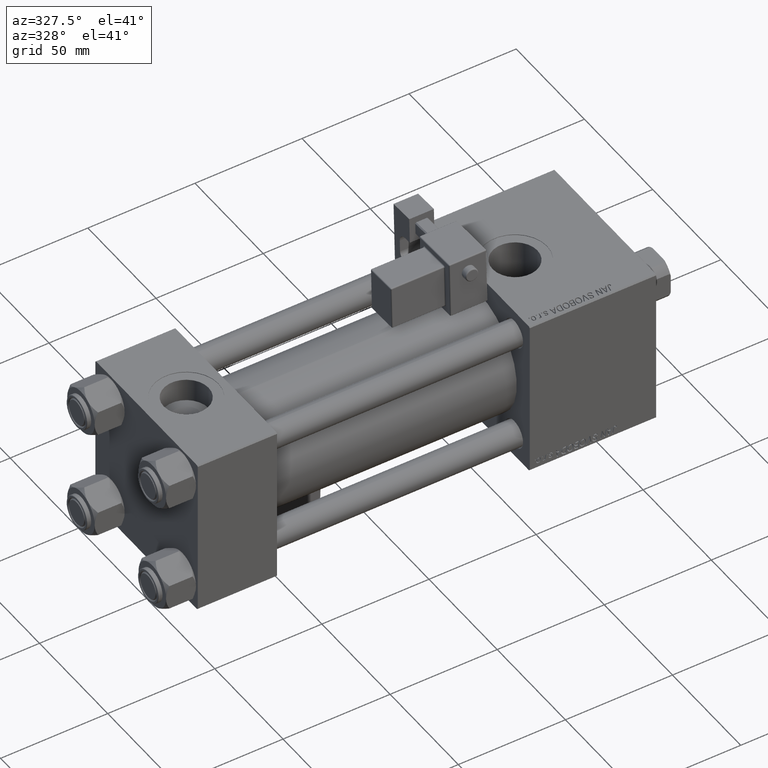
[diagram: clean part render]
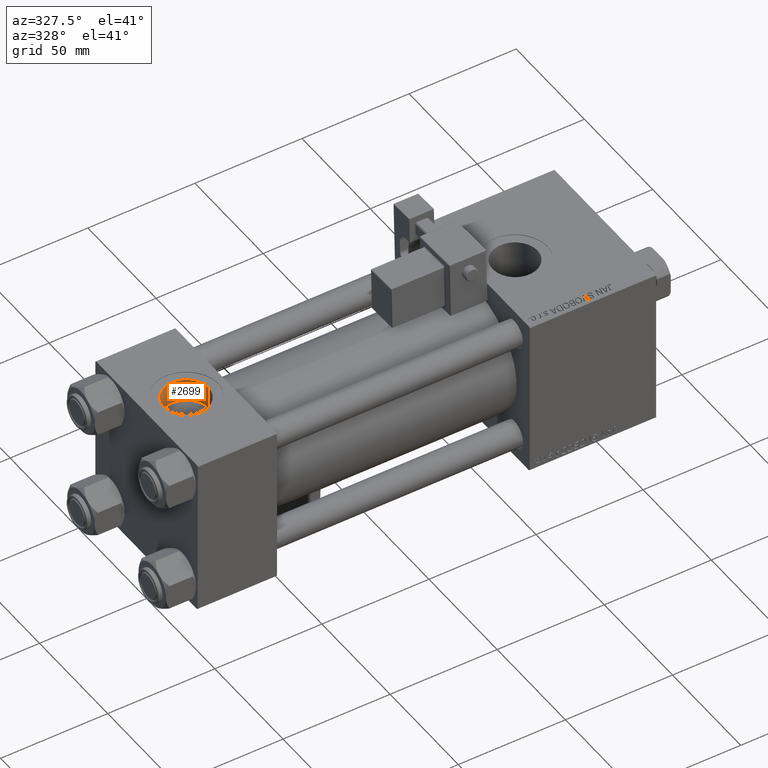
[diagram: same view with one face highlighted and labeled with its STEP entity id]
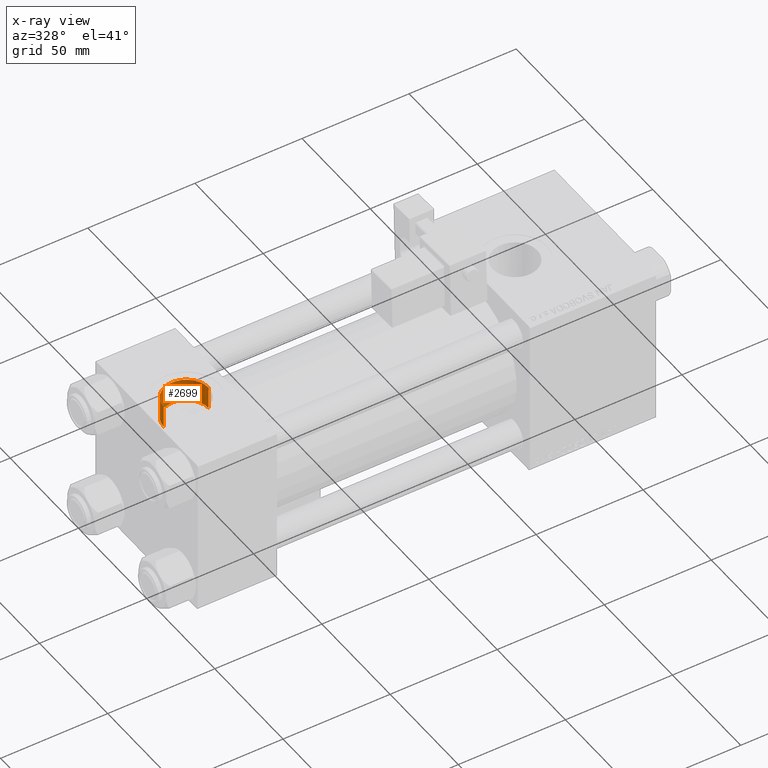
[diagram: x-ray of the same camera — body ghosted, the highlighted face saturated]
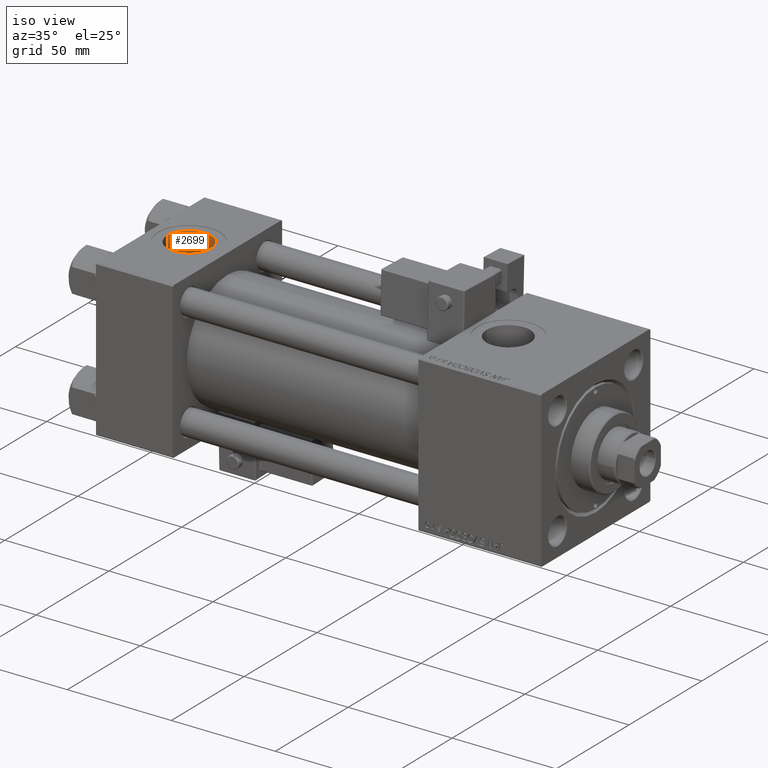
[diagram: same view with one face highlighted and labeled with its STEP entity id]
A machine part, auxiliary view. The second image highlights one B-rep face of the part: STEP entity #2699.
The next image is the same camera in x-ray: the body ghosted, the highlighted face saturated — about 0% of this face is hidden behind the body in this view.
A second angle (iso view) of the same face is appended — the face is thin or edge-on in the first view.
In plain terms, the highlighted cylindrical surface (edge-blend (fillet) strip) has radius 10.48 mm, axis along (0, 0, 1).
Its self-contained STEP definition (entity closure, byte-faithful):
#966 = CARTESIAN_POINT ( 'NONE',  ( 28.98000000000000043, -5.204170427930421283E-15, 37.29999999999999716 ) ) ;
#2241 = CARTESIAN_POINT ( 'NONE',  ( 8.019999999999999574, -3.920740582423995006E-15, 26.69999999999999929 ) ) ;
#2654 = VERTEX_POINT ( 'NONE', #15131 ) ;
#2699 = ADVANCED_FACE ( 'NONE', ( #20432 ), #8475, .F. ) ;
#3279 = VERTEX_POINT ( 'NONE', #51602 ) ;
#3879 = ORIENTED_EDGE ( 'NONE', *, *, #43959, .T. ) ;
#5575 = CARTESIAN_POINT ( 'NONE',  ( 18.50000000000000000, -5.204170427930421283E-15, 37.29999999999999716 ) ) ;
#8475 = CYLINDRICAL_SURFACE ( 'NONE', #40506, 10.48000000000000043 ) ;
#9133 = ORIENTED_EDGE ( 'NONE', *, *, #28929, .T. ) ;
#10899 = EDGE_CURVE ( 'NONE', #51161, #3279, #15833, .T. ) ;
#11018 = VECTOR ( 'NONE', #32542, 1000.000000000000000 ) ;
#12841 = ORIENTED_EDGE ( 'NONE', *, *, #20558, .F. ) ;
#15131 = CARTESIAN_POINT ( 'NONE',  ( 28.98000000000000043, -5.204170427930421283E-15, 26.69999999999999929 ) ) ;
#15833 = LINE ( 'NONE', #36281, #11018 ) ;
#16445 = DIRECTION ( 'NONE',  ( -0.000000000000000000, -0.000000000000000000, 1.000000000000000000 ) ) ;
#20432 = FACE_OUTER_BOUND ( 'NONE', #52162, .T. ) ;
#20558 = EDGE_CURVE ( 'NONE', #2654, #51161, #29987, .T. ) ;
#23501 = CARTESIAN_POINT ( 'NONE',  ( 28.98000000000000043, -5.204170427930421283E-15, 26.69999999999999929 ) ) ;
#23868 = DIRECTION ( 'NONE',  ( 0.000000000000000000, 0.000000000000000000, 1.000000000000000000 ) ) ;
#24674 = CARTESIAN_POINT ( 'NONE',  ( 18.50000000000000000, -5.204170427930421283E-15, 26.69999999999999929 ) ) ;
#24912 = AXIS2_PLACEMENT_3D ( 'NONE', #32867, #23868, #48050 ) ;
#25633 = VERTEX_POINT ( 'NONE', #966 ) ;
#28929 = EDGE_CURVE ( 'NONE', #25633, #3279, #29151, .T. ) ;
#29151 = CIRCLE ( 'NONE', #35939, 10.48000000000000043 ) ;
#29987 = CIRCLE ( 'NONE', #24912, 10.48000000000000043 ) ;
#32542 = DIRECTION ( 'NONE',  ( -0.000000000000000000, -0.000000000000000000, 1.000000000000000000 ) ) ;
#32867 = CARTESIAN_POINT ( 'NONE',  ( 18.50000000000000000, -5.204170427930421283E-15, 26.69999999999999929 ) ) ;
#34516 = DIRECTION ( 'NONE',  ( 1.000000000000000000, 0.000000000000000000, 0.000000000000000000 ) ) ;
#35510 = VECTOR ( 'NONE', #47423, 1000.000000000000000 ) ;
#35939 = AXIS2_PLACEMENT_3D ( 'NONE', #5575, #46488, #34516 ) ;
#36281 = CARTESIAN_POINT ( 'NONE',  ( 8.019999999999999574, -3.920740582423995006E-15, 26.69999999999999929 ) ) ;
#40506 = AXIS2_PLACEMENT_3D ( 'NONE', #24674, #16445, #40879 ) ;
#40879 = DIRECTION ( 'NONE',  ( 1.000000000000000000, 0.000000000000000000, 0.000000000000000000 ) ) ;
#42804 = ORIENTED_EDGE ( 'NONE', *, *, #10899, .F. ) ;
#43959 = EDGE_CURVE ( 'NONE', #2654, #25633, #52201, .T. ) ;
#46488 = DIRECTION ( 'NONE',  ( 0.000000000000000000, 0.000000000000000000, 1.000000000000000000 ) ) ;
#47423 = DIRECTION ( 'NONE',  ( -0.000000000000000000, -0.000000000000000000, 1.000000000000000000 ) ) ;
#48050 = DIRECTION ( 'NONE',  ( 1.000000000000000000, 0.000000000000000000, 0.000000000000000000 ) ) ;
#51161 = VERTEX_POINT ( 'NONE', #2241 ) ;
#51602 = CARTESIAN_POINT ( 'NONE',  ( 8.019999999999999574, -3.920740582423995006E-15, 37.29999999999999716 ) ) ;
#52162 = EDGE_LOOP ( 'NONE', ( #42804, #12841, #3879, #9133 ) ) ;
#52201 = LINE ( 'NONE', #23501, #35510 ) ;